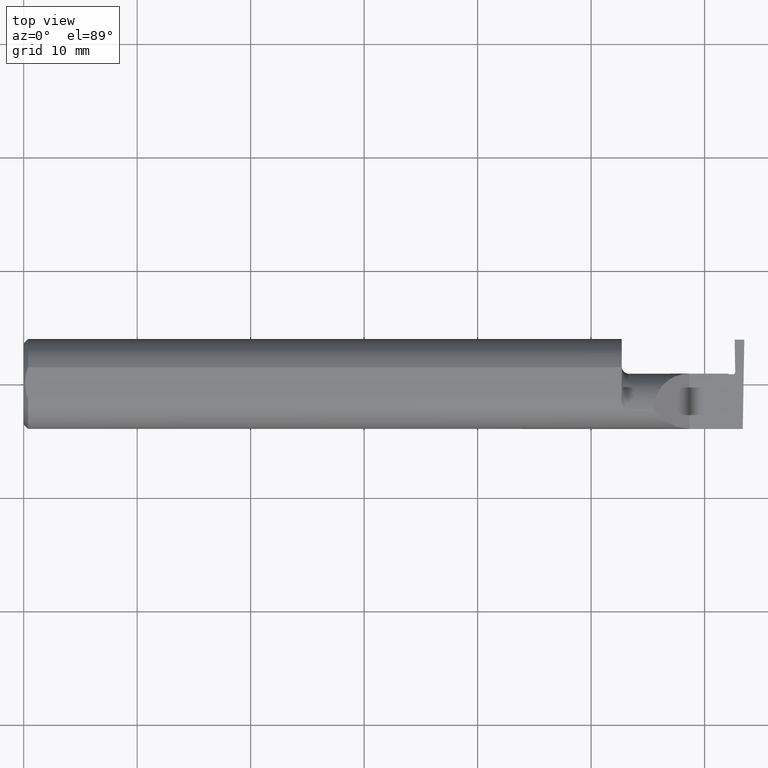
[diagram: clean part render]
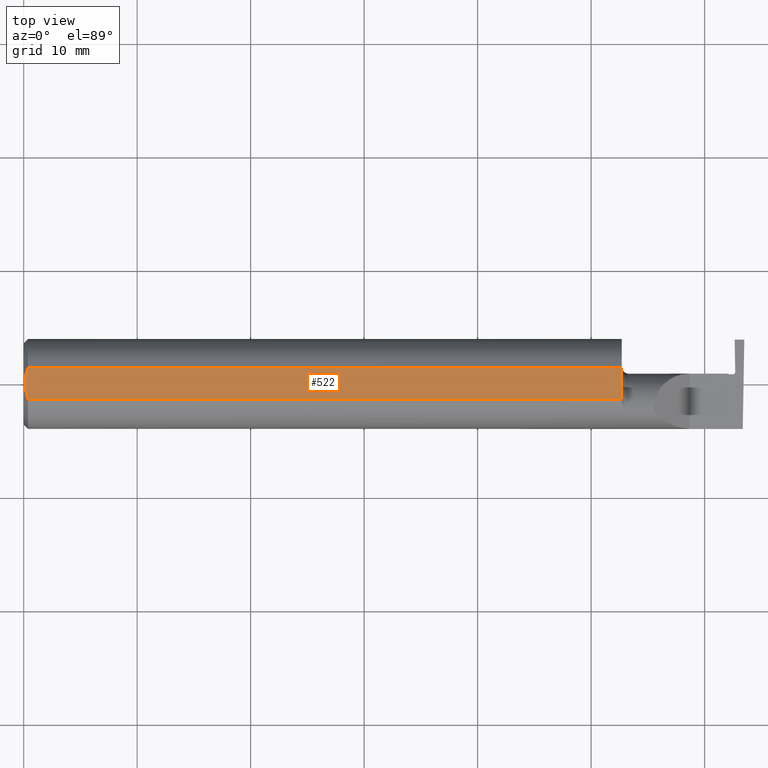
[diagram: same view with one face highlighted and labeled with its STEP entity id]
A machine part, top view. The second image highlights one B-rep face of the part: STEP entity #522.
In plain terms, the highlighted planar face has unit normal (0, -0, 1).
Its self-contained STEP definition (entity closure, byte-faithful):
#9 = EDGE_LOOP ( 'NONE', ( #1073, #179, #97, #429, #283 ) ) ;
#17 = CARTESIAN_POINT ( 'NONE',  ( 0.01187749995209270472, 0.04610609988228752537, 0.1460999999999999799 ) ) ;
#24 = CARTESIAN_POINT ( 'NONE',  ( 2.500000000000000000, -0.1561000000000000165, 0.1460999999999999799 ) ) ;
#27 = EDGE_CURVE ( 'NONE', #779, #254, #69, .T. ) ;
#44 = CARTESIAN_POINT ( 'NONE',  ( 2.075000000000000178, 0.05497272050753900657, 0.1460999999999999799 ) ) ;
#61 = VECTOR ( 'NONE', #922, 39.37007874015748143 ) ;
#65 = CARTESIAN_POINT ( 'NONE',  ( 0.000000000000000000, -0.05497272050753900657, 0.1460999999999999799 ) ) ;
#67 = EDGE_CURVE ( 'NONE', #986, #687, #701, .T. ) ;
#69 = LINE ( 'NONE', #985, #821 ) ;
#80 = PLANE ( 'NONE',  #439 ) ;
#97 = ORIENTED_EDGE ( 'NONE', *, *, #186, .T. ) ;
#115 = CARTESIAN_POINT ( 'NONE',  ( 0.004999999999999936787, 2.057148927093534050E-17, 0.1460999999999999799 ) ) ;
#160 = CARTESIAN_POINT ( 'NONE',  ( 0.004999999999999936787, 2.057148927093534050E-17, 0.1460999999999999799 ) ) ;
#179 = ORIENTED_EDGE ( 'NONE', *, *, #27, .T. ) ;
#186 = EDGE_CURVE ( 'NONE', #254, #670, #1007, .T. ) ;
#190 = CARTESIAN_POINT ( 'NONE',  ( 0.005929349363808920914, 0.01879672308419500643, 0.1460999999999999799 ) ) ;
#224 = CARTESIAN_POINT ( 'NONE',  ( 0.009356849677355947789, -0.03706298561014172849, 0.1460999999999999799 ) ) ;
#254 = VERTEX_POINT ( 'NONE', #44 ) ;
#282 = CARTESIAN_POINT ( 'NONE',  ( 0.01499999999999999944, -0.05497272050753900657, 0.1460999999999999799 ) ) ;
#283 = ORIENTED_EDGE ( 'NONE', *, *, #67, .T. ) ;
#289 = CARTESIAN_POINT ( 'NONE',  ( 0.01499999999999999771, 0.05497272050753900657, 0.1460999999999999799 ) ) ;
#321 = DIRECTION ( 'NONE',  ( -0.000000000000000000, 1.000000000000000000, 0.000000000000000000 ) ) ;
#341 = B_SPLINE_CURVE_WITH_KNOTS ( 'NONE', 3,
 ( #436, #17, #353, #190, #619, #1048 ),
 .UNSPECIFIED., .F., .F.,
 ( 4, 2, 4 ),
 ( 0.003294562426666346362, 0.003999440028384116178, 0.004704317630101885993 ),
 .UNSPECIFIED. ) ;
#353 = CARTESIAN_POINT ( 'NONE',  ( 0.009371209226503902576, 0.03711161584255317364, 0.1461000000000000076 ) ) ;
#404 = CARTESIAN_POINT ( 'NONE',  ( 0.01190375560897317594, -0.04618065518901644934, 0.1460999999999999799 ) ) ;
#429 = ORIENTED_EDGE ( 'NONE', *, *, #944, .T. ) ;
#432 = DIRECTION ( 'NONE',  ( 0.000000000000000000, -0.000000000000000000, 1.000000000000000000 ) ) ;
#436 = CARTESIAN_POINT ( 'NONE',  ( 0.01499999999999999771, 0.05497272050753900657, 0.1460999999999999799 ) ) ;
#437 = FACE_OUTER_BOUND ( 'NONE', #9, .T. ) ;
#439 = AXIS2_PLACEMENT_3D ( 'NONE', #24, #432, #507 ) ;
#507 = DIRECTION ( 'NONE',  ( 1.000000000000000000, 0.000000000000000000, -0.000000000000000000 ) ) ;
#522 = ADVANCED_FACE ( 'NONE', ( #437 ), #80, .T. ) ;
#560 = VECTOR ( 'NONE', #565, 39.37007874015748143 ) ;
#564 = CARTESIAN_POINT ( 'NONE',  ( 0.005910707775482238607, -0.01866948012536270504, 0.1461000000000000076 ) ) ;
#565 = DIRECTION ( 'NONE',  ( 1.000000000000000000, 0.000000000000000000, 0.000000000000000000 ) ) ;
#578 = CARTESIAN_POINT ( 'NONE',  ( 0.01499999999999999944, -0.05497272050753900657, 0.1460999999999999799 ) ) ;
#619 = CARTESIAN_POINT ( 'NONE',  ( 0.004999999999999902960, 0.009391435229055663386, 0.1460999999999999799 ) ) ;
#670 = VERTEX_POINT ( 'NONE', #289 ) ;
#680 = CARTESIAN_POINT ( 'NONE',  ( 0.000000000000000000, 0.05497272050753900657, 0.1460999999999999799 ) ) ;
#687 = VERTEX_POINT ( 'NONE', #282 ) ;
#701 = B_SPLINE_CURVE_WITH_KNOTS ( 'NONE', 3,
 ( #160, #981, #564, #224, #404, #578 ),
 .UNSPECIFIED., .F., .F.,
 ( 4, 2, 4 ),
 ( 0.004704317630101885993, 0.005408659995628783967, 0.006113002361155681942 ),
 .UNSPECIFIED. ) ;
#744 = LINE ( 'NONE', #65, #560 ) ;
#779 = VERTEX_POINT ( 'NONE', #818 ) ;
#818 = CARTESIAN_POINT ( 'NONE',  ( 2.075000000000000178, -0.05497272050753899270, 0.1460999999999999799 ) ) ;
#821 = VECTOR ( 'NONE', #321, 39.37007874015748143 ) ;
#922 = DIRECTION ( 'NONE',  ( -1.000000000000000000, -0.000000000000000000, -0.000000000000000000 ) ) ;
#944 = EDGE_CURVE ( 'NONE', #670, #986, #341, .T. ) ;
#981 = CARTESIAN_POINT ( 'NONE',  ( 0.004999999999999897755, -0.009384304010803548590, 0.1460999999999999521 ) ) ;
#985 = CARTESIAN_POINT ( 'NONE',  ( 2.075000000000000178, -0.1561000000000000165, 0.1460999999999999799 ) ) ;
#986 = VERTEX_POINT ( 'NONE', #115 ) ;
#1007 = LINE ( 'NONE', #680, #61 ) ;
#1048 = CARTESIAN_POINT ( 'NONE',  ( 0.004999999999999936787, 2.057148927093534050E-17, 0.1460999999999999799 ) ) ;
#1073 = ORIENTED_EDGE ( 'NONE', *, *, #1082, .T. ) ;
#1082 = EDGE_CURVE ( 'NONE', #687, #779, #744, .T. ) ;